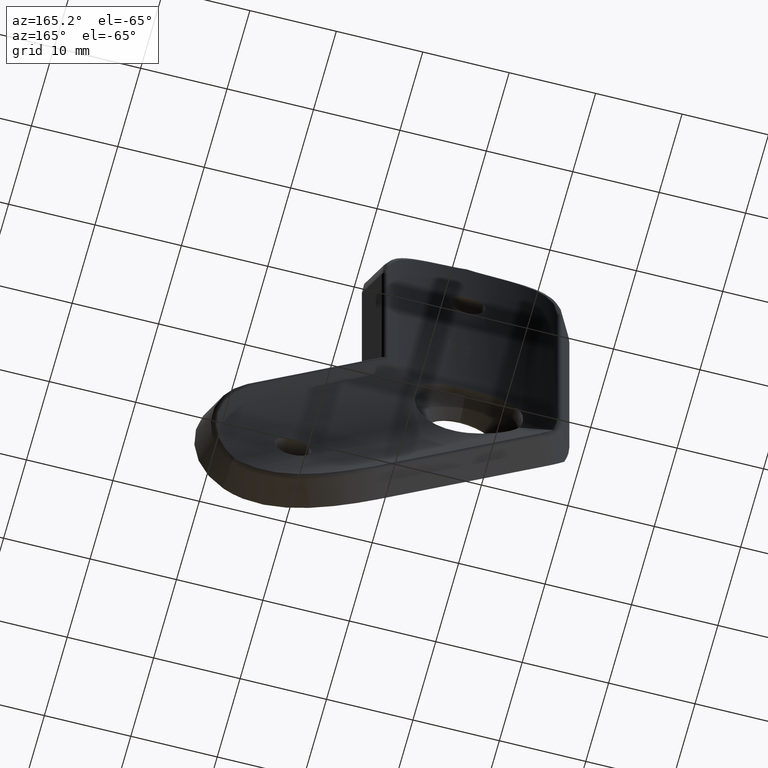
[diagram: clean part render]
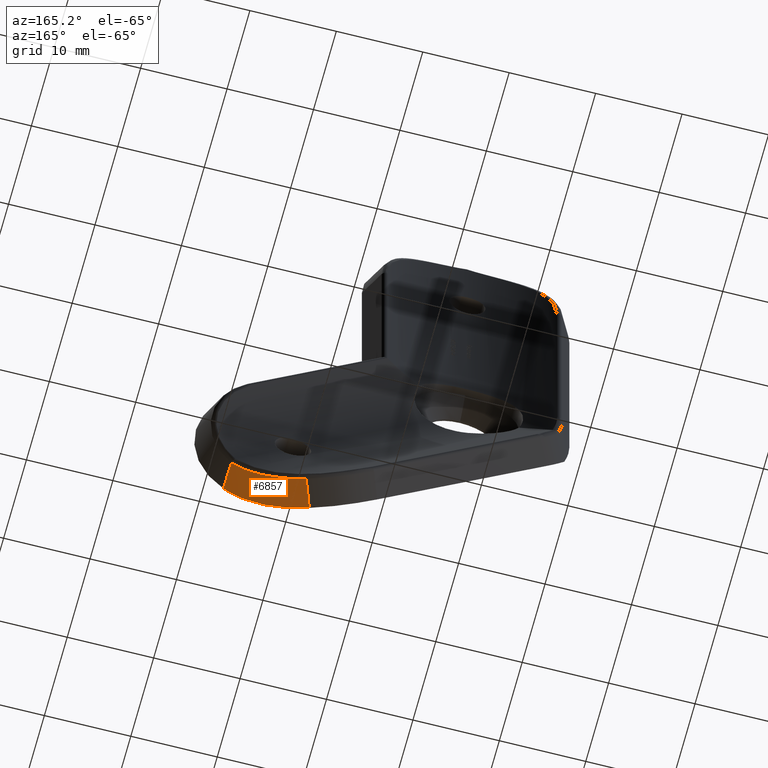
[diagram: same view with one face highlighted and labeled with its STEP entity id]
A machine part, auxiliary view. The second image highlights one B-rep face of the part: STEP entity #6857.
In plain terms, the highlighted cylindrical surface (partial cylindrical patch) has radius 12 mm, axis along (-0.3408, -0.8762, -0.3408).
Its self-contained STEP definition (entity closure, byte-faithful):
#151 = CARTESIAN_POINT ( 'NONE',  ( 19.59897895031004500, 4.507039676142308200, -29.86105938380697500 ) ) ;
#199 = FACE_OUTER_BOUND ( 'NONE', #12329, .T. ) ;
#408 = ORIENTED_EDGE ( 'NONE', *, *, #12203, .F. ) ;
#782 = EDGE_CURVE ( 'NONE', #2337, #1084, #829, .T. ) ;
#829 = B_SPLINE_CURVE_WITH_KNOTS ( 'NONE', 3,
 ( #4445, #151, #3363, #1212, #8512, #7622, #3499, #2267, #9530, #4352, #11611, #6473 ),
 .UNSPECIFIED., .F., .F.,
 ( 4, 2, 2, 2, 2, 4 ),
 ( 0.008597870686413974800, 0.01084766241431710200, 0.01309745414222022800, 0.01534724587012335400, 0.01647214173407492200, 0.01759703759802648500 ),
 .UNSPECIFIED. ) ;
#937 = CARTESIAN_POINT ( 'NONE',  ( 25.90562402731617600, 0.04866186583479907600, -28.43278342152304500 ) ) ;
#978 = CARTESIAN_POINT ( 'NONE',  ( 22.02458458994987800, 0.7256348488704101900, -30.48185336235028200 ) ) ;
#1084 = VERTEX_POINT ( 'NONE', #10435 ) ;
#1212 = CARTESIAN_POINT ( 'NONE',  ( 21.78374615284725400, 3.996992496512827000, -29.69049494156692500 ) ) ;
#1287 = CARTESIAN_POINT ( 'NONE',  ( 18.86710263860946000, 4.680744883182431000, -29.79350227623375600 ) ) ;
#1291 = ORIENTED_EDGE ( 'NONE', *, *, #8511, .T. ) ;
#2267 = CARTESIAN_POINT ( 'NONE',  ( 25.59371268722014700, 3.332608508124026900, -28.23082922568037000 ) ) ;
#2337 = VERTEX_POINT ( 'NONE', #1287 ) ;
#2601 = DIRECTION ( 'NONE',  ( -0.3407743523790587300, -0.8762109800277929600, -0.3407743523790597900 ) ) ;
#3066 = CARTESIAN_POINT ( 'NONE',  ( 21.18306253463685700, 0.9251439445683855600, -30.70870215891325100 ) ) ;
#3363 = CARTESIAN_POINT ( 'NONE',  ( 20.32775764511529100, 4.331540558787550800, -29.85411967735026900 ) ) ;
#3499 = CARTESIAN_POINT ( 'NONE',  ( 24.60461941068357600, 3.454450516870498900, -28.77466512609370900 ) ) ;
#3845 = CARTESIAN_POINT ( 'NONE',  ( 27.15185736313346600, 3.231345056262487200, -27.15185736313339500 ) ) ;
#3971 = CARTESIAN_POINT ( 'NONE',  ( 22.43680151308343800, 0.6323742230834321600, -30.34374621979285500 ) ) ;
#4100 = CARTESIAN_POINT ( 'NONE',  ( 19.68252085924049100, 2.427737457150498800, -17.79413854364652200 ) ) ;
#4209 = VERTEX_POINT ( 'NONE', #9310 ) ;
#4352 = CARTESIAN_POINT ( 'NONE',  ( 26.54769851845542000, 3.252117677244290100, -27.61193932412057400 ) ) ;
#4445 = CARTESIAN_POINT ( 'NONE',  ( 18.86710263860946000, 4.680744883182431000, -29.79350227623375600 ) ) ;
#4495 = ORIENTED_EDGE ( 'NONE', *, *, #782, .T. ) ;
#4720 = CARTESIAN_POINT ( 'NONE',  ( 19.68252085924049100, 6.777376842818087600, -28.97808405561363200 ) ) ;
#4964 = DIRECTION ( 'NONE',  ( 0.0000000000000000000, 0.3624699488056323800, -0.9319954593305926900 ) ) ;
#5147 = VERTEX_POINT ( 'NONE', #13312 ) ;
#6067 = CARTESIAN_POINT ( 'NONE',  ( 27.22361107568211500, 1.080924397931979400, -27.22361107568204000 ) ) ;
#6198 = DIRECTION ( 'NONE',  ( -0.3407743523790587900, -0.8762109800277930700, -0.3407743523790598400 ) ) ;
#6473 = CARTESIAN_POINT ( 'NONE',  ( 27.15185736313346600, 3.231345056262487200, -27.15185736313339500 ) ) ;
#6623 =( BOUNDED_CURVE ( )  B_SPLINE_CURVE ( 3, ( #3845, #11111, #6067, #13286 ),
 .UNSPECIFIED., .F., .T. ) 
 B_SPLINE_CURVE_WITH_KNOTS ( ( 4, 4 ),
 ( 1.440656393547517400, 1.570796326794896100 ),
 .UNSPECIFIED. ) 
 CURVE ( )  GEOMETRIC_REPRESENTATION_ITEM ( )  RATIONAL_B_SPLINE_CURVE ( ( 1.000000000000000000, 0.9985891310666824600, 0.9985891310666824600, 1.000000000000000000 ) ) 
 REPRESENTATION_ITEM ( '' )  );
#6857 = ADVANCED_FACE ( 'NONE', ( #199 ), #6928, .T. ) ;
#6928 = CYLINDRICAL_SURFACE ( 'NONE', #12443, 12.00000000000000000 ) ;
#7035 = EDGE_CURVE ( 'NONE', #2337, #4209, #9641, .T. ) ;
#7090 = CARTESIAN_POINT ( 'NONE',  ( 24.42035461253129800, 0.2482408081588427000, -29.41718208918465600 ) ) ;
#7217 = CARTESIAN_POINT ( 'NONE',  ( 23.24555289295908600, 0.4617156503276430000, -30.02018294787791700 ) ) ;
#7622 = CARTESIAN_POINT ( 'NONE',  ( 23.92448324597187800, 3.566517809341494000, -29.07220026758818700 ) ) ;
#8131 = CARTESIAN_POINT ( 'NONE',  ( 27.22361107568210800, 0.0000000000000000000, -27.22361107568204400 ) ) ;
#8262 = CARTESIAN_POINT ( 'NONE',  ( 26.58744056244697500, -1.157047005949374100E-015, -27.85978158891718700 ) ) ;
#8301 = CARTESIAN_POINT ( 'NONE',  ( 20.75229958716908700, 1.031806584648229600, -30.79728259507875200 ) ) ;
#8511 = EDGE_CURVE ( 'NONE', #1084, #5147, #6623, .T. ) ;
#8512 = CARTESIAN_POINT ( 'NONE',  ( 22.51737515037572000, 3.836881760141526600, -29.53036691325990000 ) ) ;
#8580 = ORIENTED_EDGE ( 'NONE', *, *, #7035, .F. ) ;
#9310 = CARTESIAN_POINT ( 'NONE',  ( 17.74870572930680600, 1.805083481060324000, -30.91189918554734500 ) ) ;
#9530 = CARTESIAN_POINT ( 'NONE',  ( 25.91833996790997600, 3.299780835735720300, -28.03293894174478100 ) ) ;
#9641 = LINE ( 'NONE', #4720, #11420 ) ;
#9670 = B_SPLINE_CURVE_WITH_KNOTS ( 'NONE', 3,
 ( #11062, #13238, #10178, #8301, #3066, #978, #3971, #7217, #11306, #7090, #11267, #937, #8262, #8131 ),
 .UNSPECIFIED., .F., .F.,
 ( 4, 2, 2, 2, 2, 2, 4 ),
 ( 0.008594644463655850100, 0.01125683589221361500, 0.01258793160649249900, 0.01391902732077138200, 0.01525012303505026400, 0.01658121874932914900, 0.01924341017788691300 ),
 .UNSPECIFIED. ) ;
#10178 = CARTESIAN_POINT ( 'NONE',  ( 19.46769421458895300, 1.357249360250348600, -30.98072050861990300 ) ) ;
#10435 = CARTESIAN_POINT ( 'NONE',  ( 27.15185736313346600, 3.231345056262487200, -27.15185736313339500 ) ) ;
#11062 = CARTESIAN_POINT ( 'NONE',  ( 17.74870572930680600, 1.805083481060324000, -30.91189918554734500 ) ) ;
#11111 = CARTESIAN_POINT ( 'NONE',  ( 27.19965937879419100, 2.159561231885498400, -27.19965937879412000 ) ) ;
#11267 = CARTESIAN_POINT ( 'NONE',  ( 24.80330163641762600, 0.1895189691102327500, -29.18398555839966900 ) ) ;
#11306 = CARTESIAN_POINT ( 'NONE',  ( 23.64208304520381900, 0.3843111330171550800, -29.83471948625819100 ) ) ;
#11420 = VECTOR ( 'NONE', #2601, 1000.000000000000100 ) ;
#11611 = CARTESIAN_POINT ( 'NONE',  ( 26.85378090956876900, 3.237090739753064400, -27.38814176508622800 ) ) ;
#12203 = EDGE_CURVE ( 'NONE', #4209, #5147, #9670, .T. ) ;
#12329 = EDGE_LOOP ( 'NONE', ( #8580, #4495, #1291, #408 ) ) ;
#12443 = AXIS2_PLACEMENT_3D ( 'NONE', #4100, #6198, #4964 ) ;
#13238 = CARTESIAN_POINT ( 'NONE',  ( 18.61052526206851700, 1.583986896799858000, -30.99788765982109200 ) ) ;
#13286 = CARTESIAN_POINT ( 'NONE',  ( 27.22361107568210800, 0.0000000000000000000, -27.22361107568204400 ) ) ;
#13312 = CARTESIAN_POINT ( 'NONE',  ( 27.22361107568210800, 0.0000000000000000000, -27.22361107568204400 ) ) ;